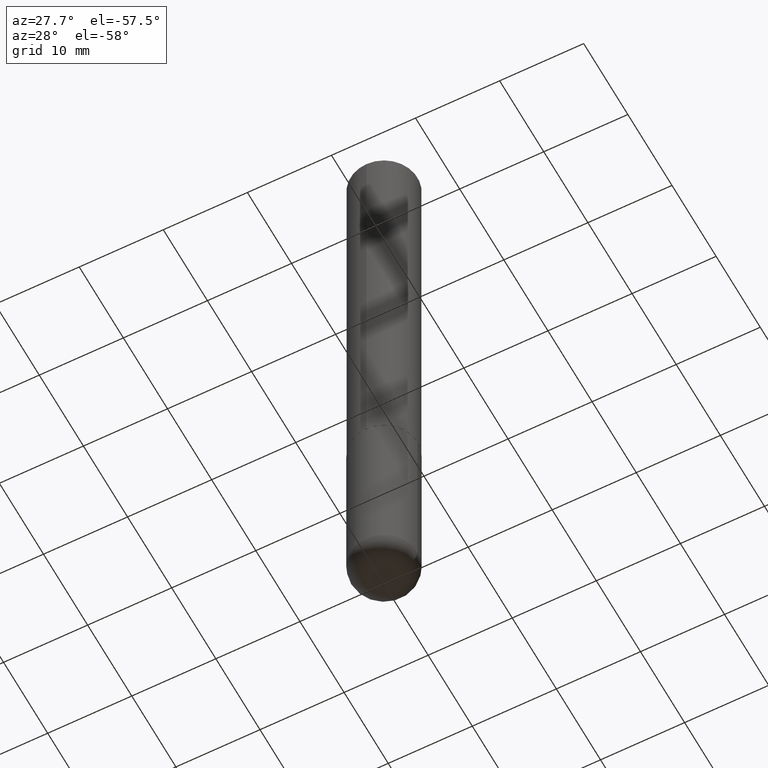
[diagram: clean part render]
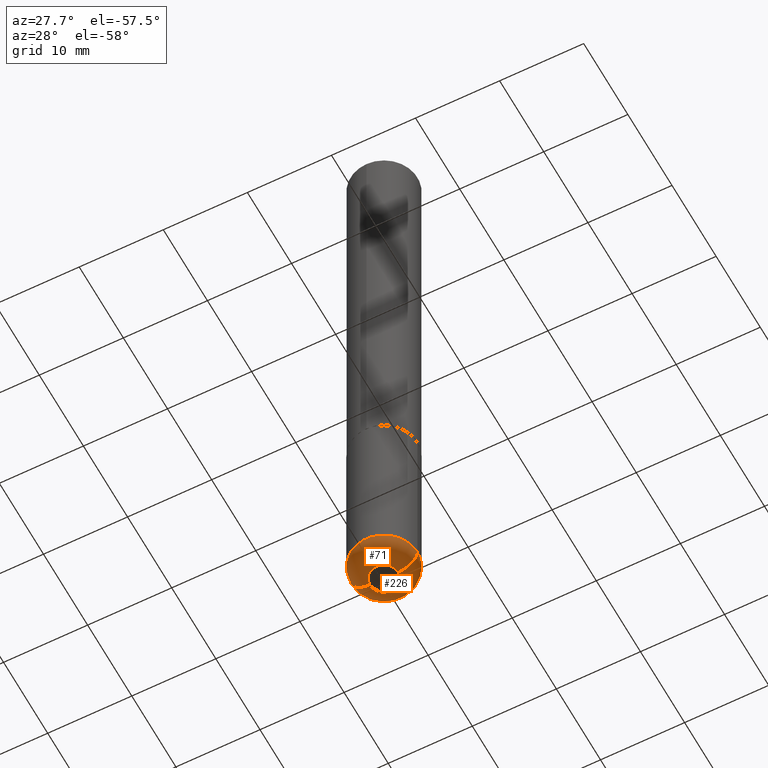
[diagram: same view with one multi-face feature highlighted, each face labeled with its STEP entity id]
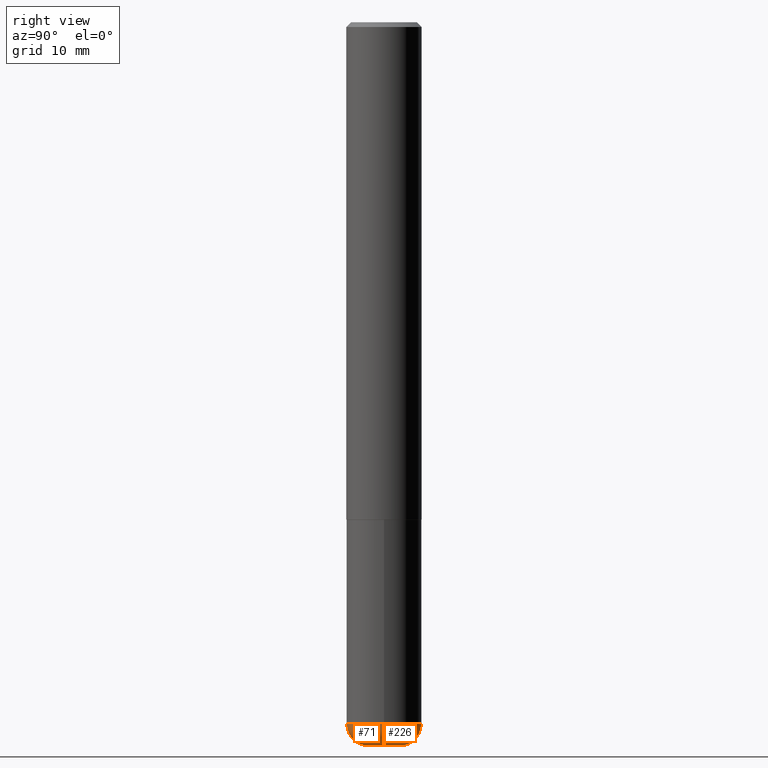
[diagram: same view with one multi-face feature highlighted, each face labeled with its STEP entity id]
A machine part, auxiliary view. The highlighted faces form ONE feature: a constant-radius fillet chain: 2 tangent blend faces with common blend radius 2.286 mm. The faces share edges in the B-rep.
A second angle (right view) of the same feature is appended — it is thin or edge-on in the first view.
Their STEP definitions:
[1] entity #71 (Torus):
#18 = DIRECTION ( 'NONE',  ( 7.105427357601001859E-15, 1.000000000000000000, -3.491481338843145583E-15 ) ) ;
#21 = CARTESIAN_POINT ( 'NONE',  ( -0.06625000000000001721, -9.526848562748384337E-15, -2.999999999999999556 ) ) ;
#34 = AXIS2_PLACEMENT_3D ( 'NONE', #254, #261, #355 ) ;
#35 = CIRCLE ( 'NONE', #204, 0.08999999999999964972 ) ;
#37 = DIRECTION ( 'NONE',  ( -2.445468806185136597E-29, 3.491481338843145583E-15, 1.000000000000000000 ) ) ;
#41 = EDGE_CURVE ( 'NONE', #175, #366, #265, .T. ) ;
#51 = CARTESIAN_POINT ( 'NONE',  ( 0.1562499999999998335, -1.125129861442203147E-14, -2.910000000000000586 ) ) ;
#59 = DIRECTION ( 'NONE',  ( -1.000000000000000000, 7.105427357600996337E-15, 0.000000000000000000 ) ) ;
#71 = ADVANCED_FACE ( 'NONE', ( #300 ), #211, .T. ) ;
#82 = DIRECTION ( 'NONE',  ( 1.000000000000000000, -6.982962677686262766E-15, 0.000000000000000000 ) ) ;
#90 = VERTEX_POINT ( 'NONE', #122 ) ;
#122 = CARTESIAN_POINT ( 'NONE',  ( -0.1562499999999998335, -9.049987671408398127E-15, -2.910000000000000586 ) ) ;
#138 = EDGE_CURVE ( 'NONE', #277, #175, #320, .T. ) ;
#140 = CIRCLE ( 'NONE', #150, 0.1562500000000000000 ) ;
#141 = EDGE_LOOP ( 'NONE', ( #207, #162, #311, #340 ) ) ;
#147 = DIRECTION ( 'NONE',  ( 1.000000000000000000, -6.982962677686273810E-15, 0.000000000000000000 ) ) ;
#150 = AXIS2_PLACEMENT_3D ( 'NONE', #334, #394, #82 ) ;
#162 = ORIENTED_EDGE ( 'NONE', *, *, #138, .T. ) ;
#174 = CARTESIAN_POINT ( 'NONE',  ( 7.336406418555408669E-29, -1.047444401652943478E-14, -2.999999999999999556 ) ) ;
#175 = VERTEX_POINT ( 'NONE', #287 ) ;
#204 = AXIS2_PLACEMENT_3D ( 'NONE', #294, #18, #59 ) ;
#207 = ORIENTED_EDGE ( 'NONE', *, *, #342, .F. ) ;
#208 = DIRECTION ( 'NONE',  ( -6.982962677686266711E-15, -1.000000000000000000, 3.491481338843145583E-15 ) ) ;
#211 = TOROIDAL_SURFACE ( 'NONE', #34, 0.06625000000000001721, 0.08999999999999964972 ) ;
#247 = AXIS2_PLACEMENT_3D ( 'NONE', #335, #208, #147 ) ;
#254 = CARTESIAN_POINT ( 'NONE',  ( 7.116314225998749245E-29, -1.016021069603355467E-14, -2.910000000000000586 ) ) ;
#261 = DIRECTION ( 'NONE',  ( -2.445468806185136597E-29, 3.491481338843145583E-15, 1.000000000000000000 ) ) ;
#262 = DIRECTION ( 'NONE',  ( 1.000000000000000000, -6.982962677686253300E-15, 0.000000000000000000 ) ) ;
#265 = CIRCLE ( 'NONE', #247, 0.08999999999999964972 ) ;
#277 = VERTEX_POINT ( 'NONE', #21 ) ;
#287 = CARTESIAN_POINT ( 'NONE',  ( 0.06625000000000001721, -1.093706529392614979E-14, -2.999999999999999556 ) ) ;
#294 = CARTESIAN_POINT ( 'NONE',  ( -0.06625000000000001721, -9.689476133592487284E-15, -2.910000000000000586 ) ) ;
#300 = FACE_OUTER_BOUND ( 'NONE', #141, .T. ) ;
#311 = ORIENTED_EDGE ( 'NONE', *, *, #41, .T. ) ;
#320 = CIRCLE ( 'NONE', #398, 0.06625000000000001721 ) ;
#334 = CARTESIAN_POINT ( 'NONE',  ( 7.116314225998749245E-29, -1.016021069603355467E-14, -2.910000000000000586 ) ) ;
#335 = CARTESIAN_POINT ( 'NONE',  ( 0.06625000000000001721, -1.062283197343026968E-14, -2.910000000000000586 ) ) ;
#340 = ORIENTED_EDGE ( 'NONE', *, *, #390, .F. ) ;
#342 = EDGE_CURVE ( 'NONE', #277, #90, #35, .T. ) ;
#355 = DIRECTION ( 'NONE',  ( 1.000000000000000000, -6.982962677686265133E-15, 4.883557194083112901E-29 ) ) ;
#366 = VERTEX_POINT ( 'NONE', #51 ) ;
#390 = EDGE_CURVE ( 'NONE', #90, #366, #140, .T. ) ;
#394 = DIRECTION ( 'NONE',  ( -2.445468806185136597E-29, 3.491481338843145583E-15, 1.000000000000000000 ) ) ;
#398 = AXIS2_PLACEMENT_3D ( 'NONE', #174, #37, #262 ) ;
[2] entity #226 (Torus):
#7 = ORIENTED_EDGE ( 'NONE', *, *, #19, .T. ) ;
#18 = DIRECTION ( 'NONE',  ( 7.105427357601001859E-15, 1.000000000000000000, -3.491481338843145583E-15 ) ) ;
#19 = EDGE_CURVE ( 'NONE', #175, #277, #194, .T. ) ;
#21 = CARTESIAN_POINT ( 'NONE',  ( -0.06625000000000001721, -9.526848562748384337E-15, -2.999999999999999556 ) ) ;
#35 = CIRCLE ( 'NONE', #204, 0.08999999999999964972 ) ;
#41 = EDGE_CURVE ( 'NONE', #175, #366, #265, .T. ) ;
#50 = AXIS2_PLACEMENT_3D ( 'NONE', #212, #321, #361 ) ;
#51 = CARTESIAN_POINT ( 'NONE',  ( 0.1562499999999998335, -1.125129861442203147E-14, -2.910000000000000586 ) ) ;
#59 = DIRECTION ( 'NONE',  ( -1.000000000000000000, 7.105427357600996337E-15, 0.000000000000000000 ) ) ;
#90 = VERTEX_POINT ( 'NONE', #122 ) ;
#96 = ORIENTED_EDGE ( 'NONE', *, *, #41, .F. ) ;
#122 = CARTESIAN_POINT ( 'NONE',  ( -0.1562499999999998335, -9.049987671408398127E-15, -2.910000000000000586 ) ) ;
#147 = DIRECTION ( 'NONE',  ( 1.000000000000000000, -6.982962677686273810E-15, 0.000000000000000000 ) ) ;
#158 = DIRECTION ( 'NONE',  ( 1.000000000000000000, -6.982962677686253300E-15, 0.000000000000000000 ) ) ;
#169 = EDGE_CURVE ( 'NONE', #366, #90, #409, .T. ) ;
#175 = VERTEX_POINT ( 'NONE', #287 ) ;
#194 = CIRCLE ( 'NONE', #236, 0.06625000000000001721 ) ;
#204 = AXIS2_PLACEMENT_3D ( 'NONE', #294, #18, #59 ) ;
#208 = DIRECTION ( 'NONE',  ( -6.982962677686266711E-15, -1.000000000000000000, 3.491481338843145583E-15 ) ) ;
#212 = CARTESIAN_POINT ( 'NONE',  ( 7.116314225998749245E-29, -1.016021069603355467E-14, -2.910000000000000586 ) ) ;
#215 = FACE_OUTER_BOUND ( 'NONE', #279, .T. ) ;
#222 = DIRECTION ( 'NONE',  ( 1.000000000000000000, -6.982962677686265133E-15, 4.883557194083112901E-29 ) ) ;
#224 = CARTESIAN_POINT ( 'NONE',  ( 7.116314225998749245E-29, -1.016021069603355467E-14, -2.910000000000000586 ) ) ;
#226 = ADVANCED_FACE ( 'NONE', ( #215 ), #269, .T. ) ;
#236 = AXIS2_PLACEMENT_3D ( 'NONE', #401, #306, #158 ) ;
#242 = ORIENTED_EDGE ( 'NONE', *, *, #342, .T. ) ;
#247 = AXIS2_PLACEMENT_3D ( 'NONE', #335, #208, #147 ) ;
#265 = CIRCLE ( 'NONE', #247, 0.08999999999999964972 ) ;
#269 = TOROIDAL_SURFACE ( 'NONE', #298, 0.06625000000000001721, 0.08999999999999964972 ) ;
#277 = VERTEX_POINT ( 'NONE', #21 ) ;
#279 = EDGE_LOOP ( 'NONE', ( #7, #242, #384, #96 ) ) ;
#287 = CARTESIAN_POINT ( 'NONE',  ( 0.06625000000000001721, -1.093706529392614979E-14, -2.999999999999999556 ) ) ;
#294 = CARTESIAN_POINT ( 'NONE',  ( -0.06625000000000001721, -9.689476133592487284E-15, -2.910000000000000586 ) ) ;
#298 = AXIS2_PLACEMENT_3D ( 'NONE', #224, #388, #222 ) ;
#306 = DIRECTION ( 'NONE',  ( -2.445468806185136597E-29, 3.491481338843145583E-15, 1.000000000000000000 ) ) ;
#321 = DIRECTION ( 'NONE',  ( -2.445468806185136597E-29, 3.491481338843145583E-15, 1.000000000000000000 ) ) ;
#335 = CARTESIAN_POINT ( 'NONE',  ( 0.06625000000000001721, -1.062283197343026968E-14, -2.910000000000000586 ) ) ;
#342 = EDGE_CURVE ( 'NONE', #277, #90, #35, .T. ) ;
#361 = DIRECTION ( 'NONE',  ( 1.000000000000000000, -6.982962677686262766E-15, 0.000000000000000000 ) ) ;
#366 = VERTEX_POINT ( 'NONE', #51 ) ;
#384 = ORIENTED_EDGE ( 'NONE', *, *, #169, .F. ) ;
#388 = DIRECTION ( 'NONE',  ( -2.445468806185136597E-29, 3.491481338843145583E-15, 1.000000000000000000 ) ) ;
#401 = CARTESIAN_POINT ( 'NONE',  ( 7.336406418555408669E-29, -1.047444401652943478E-14, -2.999999999999999556 ) ) ;
#409 = CIRCLE ( 'NONE', #50, 0.1562500000000000000 ) ;